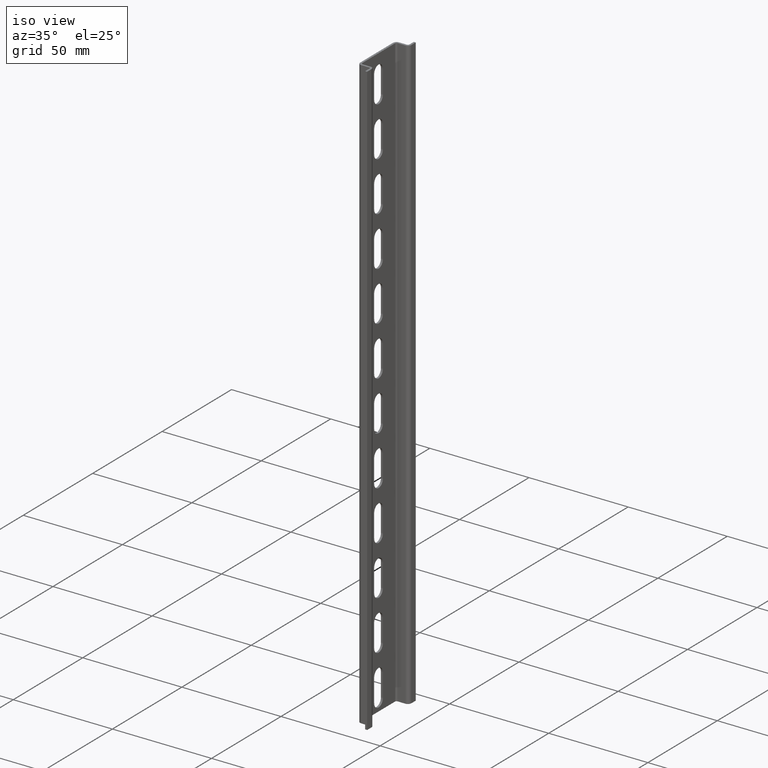
[diagram: clean part render]
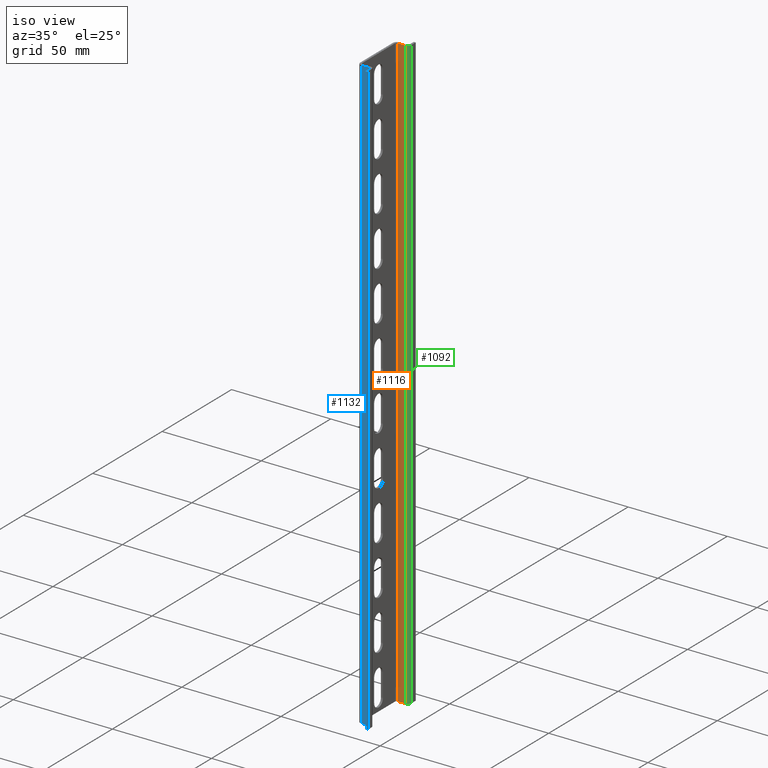
[diagram: same view with three faces highlighted in distinct colors, each labeled with its STEP entity id]
A machine part, iso view with three faces highlighted in distinct colors.
Their STEP definitions:

[orange] entity #1116 — the highlighted planar face has unit normal (0, -1, 0).
#98 = VERTEX_POINT ( 'NONE', #243 ) ;
#118 = VERTEX_POINT ( 'NONE', #286 ) ;
#148 = VERTEX_POINT ( 'NONE', #262 ) ;
#237 = VERTEX_POINT ( 'NONE', #341 ) ;
#243 = CARTESIAN_POINT ( 'NONE',  ( 1386.625919215657900, 481.7188036583252700, 0.0000000000000000000 ) ) ;
#262 = CARTESIAN_POINT ( 'NONE',  ( 1390.525919215657700, 481.7188036583252700, 300.0000000000000000 ) ) ;
#286 = CARTESIAN_POINT ( 'NONE',  ( 1386.625919215657900, 481.7188036583252700, 300.0000000000000000 ) ) ;
#341 = CARTESIAN_POINT ( 'NONE',  ( 1390.525919215657700, 481.7188036583252700, 0.0000000000000000000 ) ) ;
#434 = EDGE_LOOP ( 'NONE', ( #864, #855, #863, #869 ) ) ;
#855 = ORIENTED_EDGE ( 'NONE', *, *, #1320, .T. ) ;
#863 = ORIENTED_EDGE ( 'NONE', *, *, #1057, .T. ) ;
#864 = ORIENTED_EDGE ( 'NONE', *, *, #1016, .F. ) ;
#869 = ORIENTED_EDGE ( 'NONE', *, *, #1081, .F. ) ;
#1016 = EDGE_CURVE ( 'NONE', #118, #148, #2317, .T. ) ;
#1057 = EDGE_CURVE ( 'NONE', #98, #237, #2414, .T. ) ;
#1081 = EDGE_CURVE ( 'NONE', #148, #237, #1429, .T. ) ;
#1116 = ADVANCED_FACE ( 'NONE', ( #1599 ), #1594, .T. ) ;
#1320 = EDGE_CURVE ( 'NONE', #118, #98, #1950, .T. ) ;
#1429 = LINE ( 'NONE', #1430, #2511 ) ;
#1430 = CARTESIAN_POINT ( 'NONE',  ( 1390.525919215657700, 481.7188036583252700, 300.0000000000000000 ) ) ;
#1449 = DIRECTION ( 'NONE',  ( 0.0000000000000000000, 0.0000000000000000000, -1.000000000000000000 ) ) ;
#1594 = PLANE ( 'NONE',  #2455 ) ;
#1598 = CARTESIAN_POINT ( 'NONE',  ( 1388.575919215657900, 481.7188036583252700, 300.0000000000000000 ) ) ;
#1599 = FACE_OUTER_BOUND ( 'NONE', #434, .T. ) ;
#1604 = DIRECTION ( 'NONE',  ( 0.0000000000000000000, -1.000000000000000000, 0.0000000000000000000 ) ) ;
#1605 = DIRECTION ( 'NONE',  ( 0.0000000000000000000, -0.0000000000000000000, -1.000000000000000000 ) ) ;
#1935 = CARTESIAN_POINT ( 'NONE',  ( 1386.625919215657900, 481.7188036583252700, 300.0000000000000000 ) ) ;
#1939 = DIRECTION ( 'NONE',  ( 0.0000000000000000000, -0.0000000000000000000, -1.000000000000000000 ) ) ;
#1950 = LINE ( 'NONE', #1935, #2631 ) ;
#2293 = CARTESIAN_POINT ( 'NONE',  ( 1388.575919215657900, 481.7188036583252700, 300.0000000000000000 ) ) ;
#2305 = DIRECTION ( 'NONE',  ( 1.000000000000000000, 0.0000000000000000000, -0.0000000000000000000 ) ) ;
#2317 = LINE ( 'NONE', #2293, #2747 ) ;
#2414 = LINE ( 'NONE', #2448, #2811 ) ;
#2430 = DIRECTION ( 'NONE',  ( 1.000000000000000000, 0.0000000000000000000, -0.0000000000000000000 ) ) ;
#2448 = CARTESIAN_POINT ( 'NONE',  ( 1388.575919215657900, 481.7188036583252700, 0.0000000000000000000 ) ) ;
#2455 = AXIS2_PLACEMENT_3D ( 'NONE', #1598, #1604, #1605 ) ;
#2511 = VECTOR ( 'NONE', #1449, 1000.000000000000000 ) ;
#2631 = VECTOR ( 'NONE', #1939, 1000.000000000000000 ) ;
#2747 = VECTOR ( 'NONE', #2305, 1000.000000000000000 ) ;
#2811 = VECTOR ( 'NONE', #2430, 1000.000000000000000 ) ;

[blue] entity #1132 — the highlighted planar face has unit normal (-0, -1, 0).
#86 = VERTEX_POINT ( 'NONE', #256 ) ;
#89 = VERTEX_POINT ( 'NONE', #241 ) ;
#92 = VERTEX_POINT ( 'NONE', #222 ) ;
#126 = VERTEX_POINT ( 'NONE', #279 ) ;
#222 = CARTESIAN_POINT ( 'NONE',  ( 1386.625919215658100, 455.5188036583253400, 0.0000000000000000000 ) ) ;
#241 = CARTESIAN_POINT ( 'NONE',  ( 1390.525919215658000, 455.5188036583252800, 300.0000000000000000 ) ) ;
#256 = CARTESIAN_POINT ( 'NONE',  ( 1386.625919215658100, 455.5188036583253400, 300.0000000000000000 ) ) ;
#279 = CARTESIAN_POINT ( 'NONE',  ( 1390.525919215658000, 455.5188036583252800, 0.0000000000000000000 ) ) ;
#455 = EDGE_LOOP ( 'NONE', ( #800, #853, #757, #785 ) ) ;
#757 = ORIENTED_EDGE ( 'NONE', *, *, #1000, .F. ) ;
#785 = ORIENTED_EDGE ( 'NONE', *, *, #1384, .F. ) ;
#800 = ORIENTED_EDGE ( 'NONE', *, *, #1382, .T. ) ;
#853 = ORIENTED_EDGE ( 'NONE', *, *, #1362, .T. ) ;
#1000 = EDGE_CURVE ( 'NONE', #86, #89, #2243, .T. ) ;
#1132 = ADVANCED_FACE ( 'NONE', ( #1709 ), #1691, .T. ) ;
#1362 = EDGE_CURVE ( 'NONE', #126, #89, #2141, .T. ) ;
#1382 = EDGE_CURVE ( 'NONE', #92, #126, #2176, .T. ) ;
#1384 = EDGE_CURVE ( 'NONE', #92, #86, #2148, .T. ) ;
#1688 = DIRECTION ( 'NONE',  ( -2.467162276944699000E-014, -1.000000000000000000, 0.0000000000000000000 ) ) ;
#1691 = PLANE ( 'NONE',  #2502 ) ;
#1693 = CARTESIAN_POINT ( 'NONE',  ( 1388.575919215658400, 455.5188036583252800, 300.0000000000000000 ) ) ;
#1709 = FACE_OUTER_BOUND ( 'NONE', #455, .T. ) ;
#1717 = DIRECTION ( 'NONE',  ( 1.000000000000000000, -2.467162276944699000E-014, 0.0000000000000000000 ) ) ;
#2114 = CARTESIAN_POINT ( 'NONE',  ( 1390.525919215658000, 455.5188036583252800, 300.0000000000000000 ) ) ;
#2125 = DIRECTION ( 'NONE',  ( 0.0000000000000000000, 0.0000000000000000000, 1.000000000000000000 ) ) ;
#2141 = LINE ( 'NONE', #2114, #2663 ) ;
#2148 = LINE ( 'NONE', #2150, #2682 ) ;
#2150 = CARTESIAN_POINT ( 'NONE',  ( 1386.625919215658100, 455.5188036583253400, 300.0000000000000000 ) ) ;
#2151 = DIRECTION ( 'NONE',  ( 0.0000000000000000000, 0.0000000000000000000, 1.000000000000000000 ) ) ;
#2161 = CARTESIAN_POINT ( 'NONE',  ( 1388.575919215657900, 455.5188036583253400, 0.0000000000000000000 ) ) ;
#2176 = LINE ( 'NONE', #2161, #2660 ) ;
#2182 = DIRECTION ( 'NONE',  ( 1.000000000000000000, 0.0000000000000000000, -0.0000000000000000000 ) ) ;
#2237 = CARTESIAN_POINT ( 'NONE',  ( 1388.575919215657900, 455.5188036583253400, 300.0000000000000000 ) ) ;
#2243 = LINE ( 'NONE', #2237, #2768 ) ;
#2251 = DIRECTION ( 'NONE',  ( 1.000000000000000000, 0.0000000000000000000, -0.0000000000000000000 ) ) ;
#2502 = AXIS2_PLACEMENT_3D ( 'NONE', #1693, #1688, #1717 ) ;
#2660 = VECTOR ( 'NONE', #2182, 1000.000000000000000 ) ;
#2663 = VECTOR ( 'NONE', #2125, 1000.000000000000000 ) ;
#2682 = VECTOR ( 'NONE', #2151, 1000.000000000000000 ) ;
#2768 = VECTOR ( 'NONE', #2251, 1000.000000000000000 ) ;

[green] entity #1092 — the highlighted cylindrical surface (edge-blend (fillet) strip) has radius 1.8 mm, axis along (0, 0, -1).
#148 = VERTEX_POINT ( 'NONE', #262 ) ;
#192 = VERTEX_POINT ( 'NONE', #332 ) ;
#237 = VERTEX_POINT ( 'NONE', #341 ) ;
#238 = VERTEX_POINT ( 'NONE', #342 ) ;
#262 = CARTESIAN_POINT ( 'NONE',  ( 1390.525919215657700, 481.7188036583252700, 300.0000000000000000 ) ) ;
#332 = CARTESIAN_POINT ( 'NONE',  ( 1392.325919215657900, 483.5188036583252800, 300.0000000000000000 ) ) ;
#341 = CARTESIAN_POINT ( 'NONE',  ( 1390.525919215657700, 481.7188036583252700, 0.0000000000000000000 ) ) ;
#342 = CARTESIAN_POINT ( 'NONE',  ( 1392.325919215657900, 483.5188036583252800, 0.0000000000000000000 ) ) ;
#388 = DIRECTION ( 'NONE',  ( 0.0000000000000000000, 0.0000000000000000000, -1.000000000000000000 ) ) ;
#397 = LINE ( 'NONE', #401, #2730 ) ;
#401 = CARTESIAN_POINT ( 'NONE',  ( 1392.325919215657900, 483.5188036583252800, 300.0000000000000000 ) ) ;
#433 = EDGE_LOOP ( 'NONE', ( #909, #918, #823, #822 ) ) ;
#822 = ORIENTED_EDGE ( 'NONE', *, *, #1081, .T. ) ;
#823 = ORIENTED_EDGE ( 'NONE', *, *, #1036, .F. ) ;
#909 = ORIENTED_EDGE ( 'NONE', *, *, #1029, .T. ) ;
#918 = ORIENTED_EDGE ( 'NONE', *, *, #968, .F. ) ;
#968 = EDGE_CURVE ( 'NONE', #192, #238, #397, .T. ) ;
#1029 = EDGE_CURVE ( 'NONE', #237, #238, #2815, .T. ) ;
#1036 = EDGE_CURVE ( 'NONE', #148, #192, #2863, .T. ) ;
#1081 = EDGE_CURVE ( 'NONE', #148, #237, #1429, .T. ) ;
#1092 = ADVANCED_FACE ( 'NONE', ( #1477 ), #1473, .T. ) ;
#1429 = LINE ( 'NONE', #1430, #2511 ) ;
#1430 = CARTESIAN_POINT ( 'NONE',  ( 1390.525919215657700, 481.7188036583252700, 300.0000000000000000 ) ) ;
#1449 = DIRECTION ( 'NONE',  ( 0.0000000000000000000, 0.0000000000000000000, -1.000000000000000000 ) ) ;
#1469 = DIRECTION ( 'NONE',  ( 0.0000000000000000000, 0.0000000000000000000, -1.000000000000000000 ) ) ;
#1473 = CYLINDRICAL_SURFACE ( 'NONE', #2469, 1.800000000000023800 ) ;
#1477 = FACE_OUTER_BOUND ( 'NONE', #433, .T. ) ;
#1485 = DIRECTION ( 'NONE',  ( -1.000000000000000000, 0.0000000000000000000, 0.0000000000000000000 ) ) ;
#1489 = CARTESIAN_POINT ( 'NONE',  ( 1390.525919215657700, 483.5188036583252800, 300.0000000000000000 ) ) ;
#2322 = CARTESIAN_POINT ( 'NONE',  ( 1390.525919215657700, 483.5188036583252800, 300.0000000000000000 ) ) ;
#2323 = DIRECTION ( 'NONE',  ( -0.0000000000000000000, -0.0000000000000000000, 1.000000000000000000 ) ) ;
#2325 = DIRECTION ( 'NONE',  ( -1.000000000000000000, 0.0000000000000000000, 0.0000000000000000000 ) ) ;
#2350 = DIRECTION ( 'NONE',  ( -1.000000000000000000, 0.0000000000000000000, 0.0000000000000000000 ) ) ;
#2354 = DIRECTION ( 'NONE',  ( -0.0000000000000000000, -0.0000000000000000000, 1.000000000000000000 ) ) ;
#2359 = CARTESIAN_POINT ( 'NONE',  ( 1390.525919215657700, 483.5188036583252800, 0.0000000000000000000 ) ) ;
#2469 = AXIS2_PLACEMENT_3D ( 'NONE', #1489, #1469, #1485 ) ;
#2511 = VECTOR ( 'NONE', #1449, 1000.000000000000000 ) ;
#2730 = VECTOR ( 'NONE', #388, 1000.000000000000000 ) ;
#2815 = CIRCLE ( 'NONE', #2819, 1.800000000000023800 ) ;
#2819 = AXIS2_PLACEMENT_3D ( 'NONE', #2359, #2354, #2350 ) ;
#2837 = AXIS2_PLACEMENT_3D ( 'NONE', #2322, #2323, #2325 ) ;
#2863 = CIRCLE ( 'NONE', #2837, 1.800000000000023800 ) ;